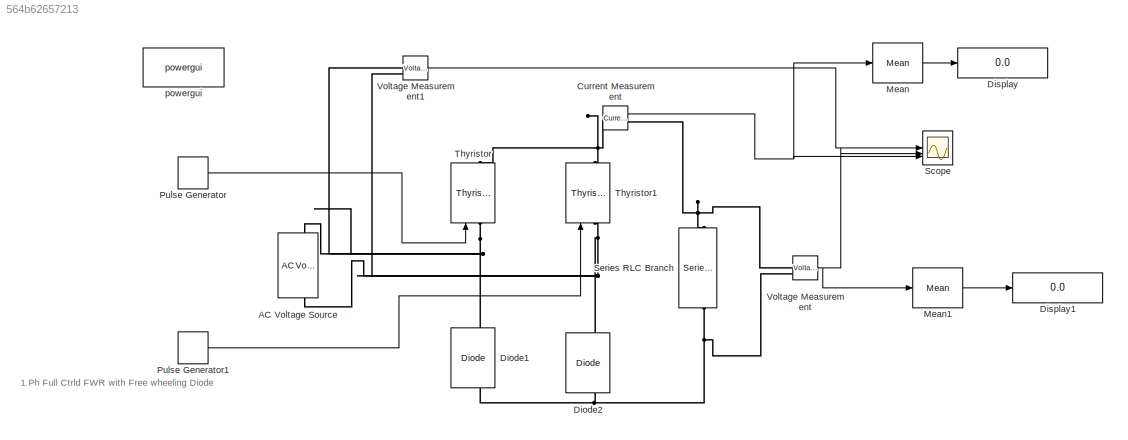
MODEL slx_564b62657213
KIND model
CONFIG AbsTol = auto
CONFIG EnableMultiTasking = off
CONFIG FixedStep = auto
CONFIG MaxStep = 1e-4
CONFIG MinStep = auto
CONFIG RelTol = 1e-3
CONFIG SampleTimeConstraint = Unconstrained
CONFIG SolverName = ode23tb
CONFIG StartTime = 0.0
CONFIG StopTime = 0.1
BLOCK [Reference] AC Voltage Source  REF=spsACVoltageSourceLib/AC Voltage Source
  LibrarySourceBlock = sps_lib/Sources/AC Voltage Source
  SourceBlock = spsACVoltageSourceLib/AC Voltage Source
  SourceType = AC Voltage Source
BLOCK [Reference] Current Measurement  REF=spsCurrentMeasurementLib/Current Measurement
  LibrarySourceBlock = sps_lib/Sensors and Measurements/Current Measurement
  SourceBlock = spsCurrentMeasurementLib/Current Measurement
  SourceType = Current Measurement
  UserDataPersistent = on
BLOCK [Reference] Diode1  REF=spsDiodeLib/Diode
  LibrarySourceBlock = sps_lib/Power Electronics/Diode
  NameLocation = right
  SourceBlock = spsDiodeLib/Diode
  SourceType = Diode
BLOCK [Reference] Diode2  REF=spsDiodeLib/Diode
  LibrarySourceBlock = sps_lib/Power Electronics/Diode
  NameLocation = right
  SourceBlock = spsDiodeLib/Diode
  SourceType = Diode
BLOCK [Display] Display
  Decimation = 1
BLOCK [Display] Display1
  Decimation = 1
BLOCK [Reference] Mean  REF=spsMeanLib/Mean
  LibrarySourceBlock = sps_lib/Sensors and Measurements/Mean
  SourceBlock = spsMeanLib/Mean
  SourceType = Mean
BLOCK [Reference] Mean1  REF=spsMeanLib/Mean
  LibrarySourceBlock = sps_lib/Sensors and Measurements/Mean
  SourceBlock = spsMeanLib/Mean
  SourceType = Mean
BLOCK [DiscretePulseGenerator] Pulse Generator
  Amplitude = 5
  Period = 0.02
  PhaseDelay = 60*(0.02/360)
  PulseType = Time based
  PulseWidth = 5
BLOCK [DiscretePulseGenerator] Pulse Generator1
  Amplitude = 5
  Period = 0.02
  PhaseDelay = 240*(0.02/360)
  PulseType = Time based
  PulseWidth = 5
BLOCK [Scope] Scope
  Floating = off
  NumInputPorts = 3
  ScopeSpecificationString = Simulink.scopes.TimeScopeBlockCfg('CurrentConfiguration', extmgr.ConfigurationSet(extmgr.Configuration('Core','General UI',true),extmgr.Configuration('Core','Source UI',true),extmgr.Configuration('Sources','WiredSimulink',true),extmgr.Configuration('Visuals','Time Domain',true,'SerializedDisplays',{struct('MinYLimReal','-124.99315','MaxYLimReal','124.99315','YLabelReal','','MinYLimMag',' 0.00000',...<+3203ch>
BLOCK [Reference] Series RLC Branch  REF=spsSeriesRLCBranchLib/Series RLC Branch
  LibrarySourceBlock = sps_lib/Passives/Series RLC Branch
  NameLocation = left
  SourceBlock = spsSeriesRLCBranchLib/Series RLC Branch
  SourceType = Series RLC Branch
BLOCK [Reference] Thyristor  REF=spsThyristorLib/Thyristor
  LibrarySourceBlock = sps_lib/Power Electronics/Thyristor
  NameLocation = right
  SourceBlock = spsThyristorLib/Thyristor
  SourceType = Thyristor
BLOCK [Reference] Thyristor1  REF=spsThyristorLib/Thyristor
  LibrarySourceBlock = sps_lib/Power Electronics/Thyristor
  NameLocation = right
  SourceBlock = spsThyristorLib/Thyristor
  SourceType = Thyristor
BLOCK [Reference] Voltage Measurement  REF=spsVoltageMeasurementLib/Voltage Measurement
  LibrarySourceBlock = sps_lib/Sensors and Measurements/Voltage Measurement
  SourceBlock = spsVoltageMeasurementLib/Voltage Measurement
  SourceType = Voltage Measurement
  UserDataPersistent = on
BLOCK [Reference] Voltage Measurement1  REF=spsVoltageMeasurementLib/Voltage Measurement
  LibrarySourceBlock = sps_lib/Sensors and Measurements/Voltage Measurement
  SourceBlock = spsVoltageMeasurementLib/Voltage Measurement
  SourceType = Voltage Measurement
  UserDataPersistent = on
BLOCK [Reference] powergui  REF=sps_lib/powergui
  LibrarySourceBlock = sps_lib/powergui
  Priority = 1
  SourceBlock = sps_lib/powergui
  SourceType = PSB option menu block
ANNOTATION (root): 1 Ph Full Ctrld FWR with Free wheeling Diode
NET Current Measurement:1 -> Mean:1, Scope:3
LINE Mean1:1 -> Display1:1
LINE Mean:1 -> Display:1
LINE Pulse Generator1:1 -> Thyristor1:1
LINE Pulse Generator:1 -> Thyristor:1
LINE Voltage Measurement1:1 -> Scope:1
NET Voltage Measurement:1 -> Mean1:1, Scope:2
PNET net1: AC Voltage Source:LConn1 -- Diode2:RConn1 -- Thyristor1:LConn1 -- Voltage Measurement1:LConn2
PNET net2: AC Voltage Source:RConn1 -- Diode1:RConn1 -- Thyristor:LConn1 -- Voltage Measurement1:LConn1
PNET net3: Current Measurement:LConn1 -- Thyristor1:RConn1 -- Thyristor:RConn1
PNET net4: Current Measurement:RConn1 -- Series RLC Branch:LConn1 -- Voltage Measurement:LConn1
PNET net5: Diode1:LConn1 -- Diode2:LConn1 -- Series RLC Branch:RConn1 -- Voltage Measurement:LConn2
note: NET lines group one-source signal fan-out (src -> all destinations, sorted); 1:1 wires keep LINE; PNET lines group multi-terminal physical nets as a canonical sorted terminal list (undirected conserving connections); 2-terminal nets keep the pairwise PLINE form
